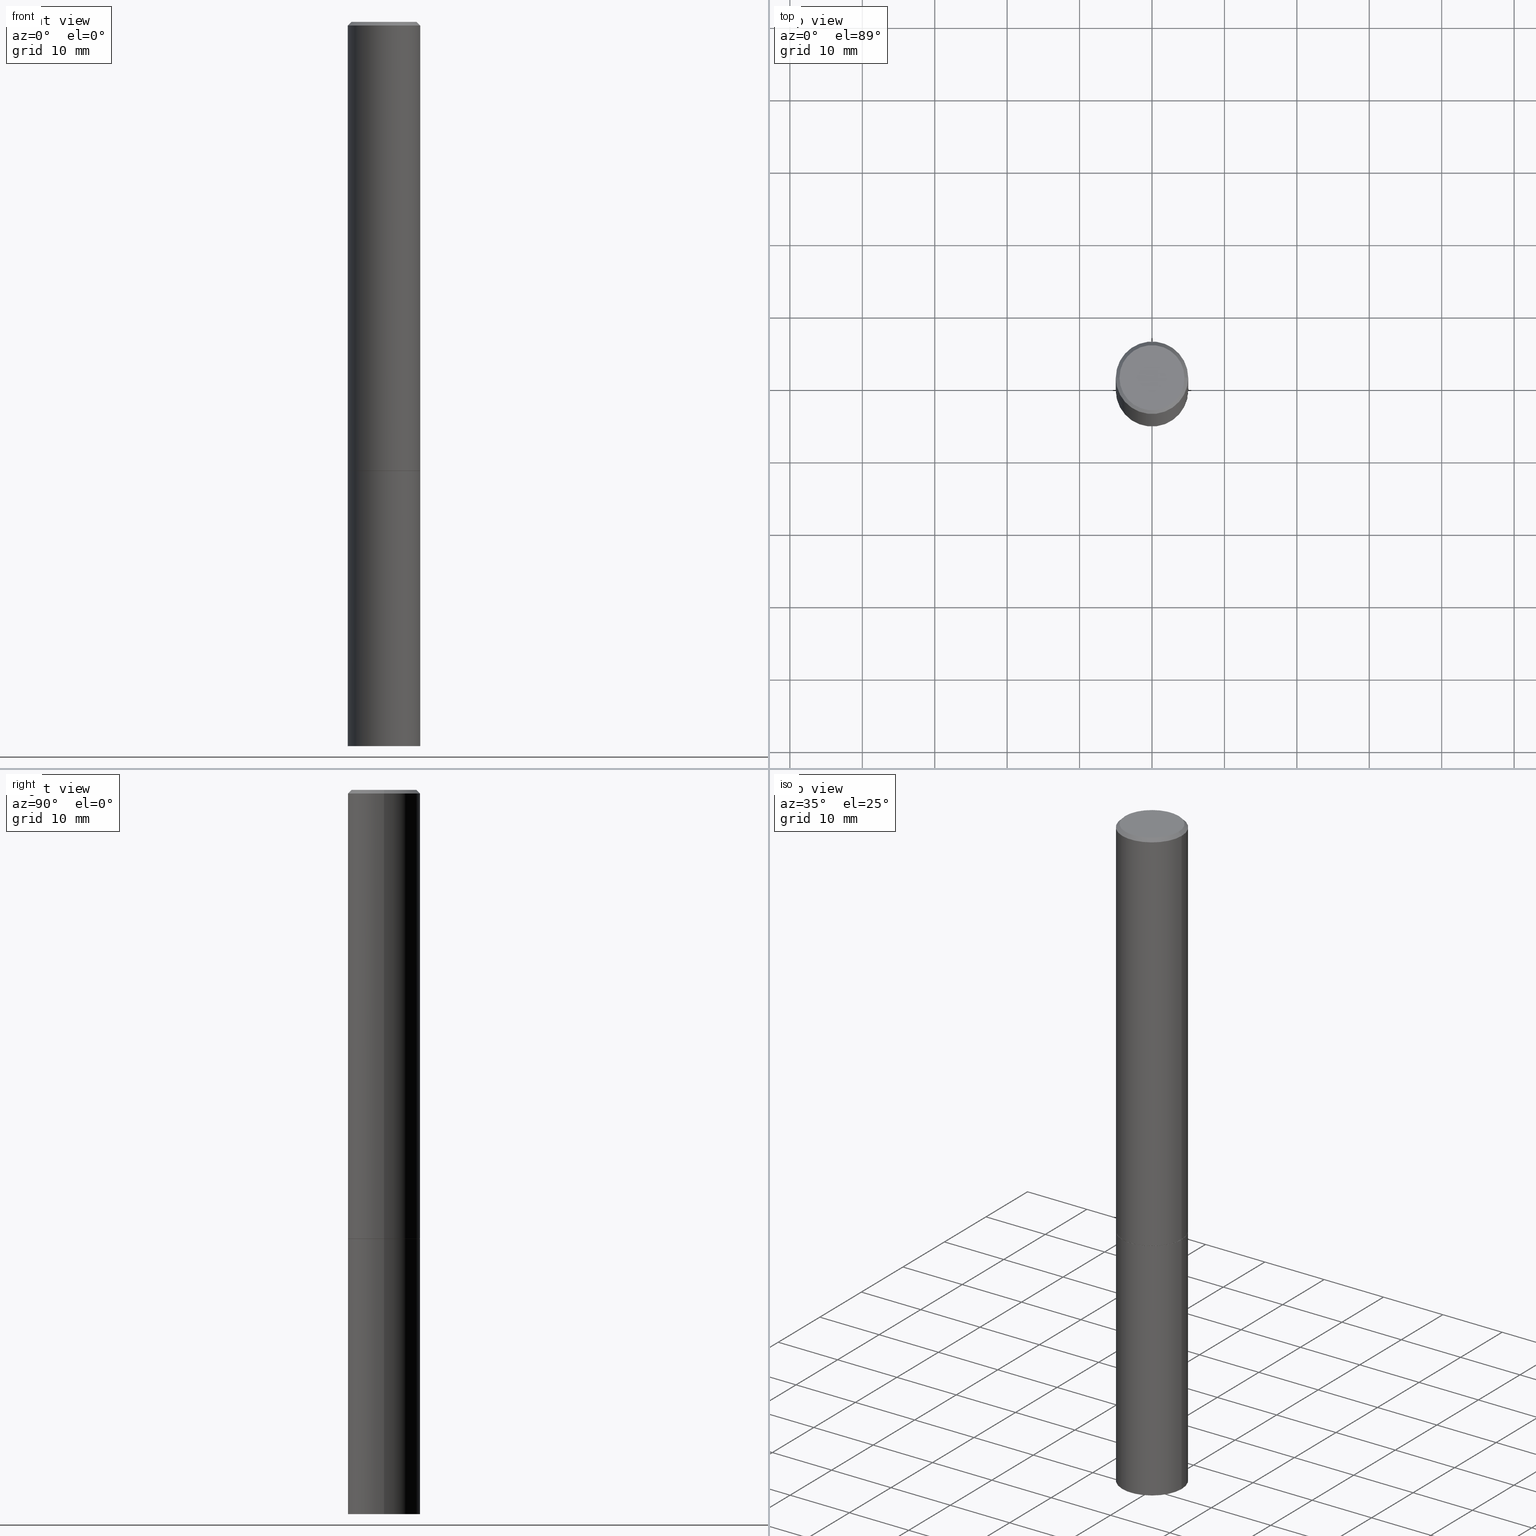
[diagram: canonical four-view strip — front | top / right | iso, engineering-drawing reading convention]
A machine part, canonical four-view strip (front | top / right | iso — engineering-drawing reading convention). The complete STEP part file that produces these views, byte-faithful:
ISO-10303-21;
HEADER;
FILE_DESCRIPTION (( 'STEP AP203' ),
    '1' );
FILE_NAME ('42614.STEP',
    '2024-02-28T03:22:31',
    ( '' ),
    ( '' ),
    'SwSTEP 2.0',
    'SolidWorks 2023',
    '' );
FILE_SCHEMA (( 'CONFIG_CONTROL_DESIGN' ));
ENDSEC;

DATA;
#1 = AXIS2_PLACEMENT_3D ( 'NONE', #303, #267, #355 ) ;
#2 = VERTEX_POINT ( 'NONE', #171 ) ;
#3 = ADVANCED_FACE ( 'NONE', ( #287 ), #257, .F. ) ;
#4 = CARTESIAN_POINT ( 'NONE',  ( 0.1968500000000000250, -9.893461521745931567E-15, -2.439900000000000180 ) ) ;
#5 = CARTESIAN_POINT ( 'NONE',  ( 1.234936949548815012E-15, 0.1768499999999998407, -6.153342185293596592E-16 ) ) ;
#6 = DIRECTION ( 'NONE',  ( -2.445468806185136597E-29, 3.491481338843145583E-15, 1.000000000000000000 ) ) ;
#7 = ORIENTED_EDGE ( 'NONE', *, *, #90, .F. ) ;
#8 = DATE_AND_TIME ( #206, #343 ) ;
#9 = ORIENTED_EDGE ( 'NONE', *, *, #210, .T. ) ;
#10 = AXIS2_PLACEMENT_3D ( 'NONE', #155, #51, #276 ) ;
#11 = CIRCLE ( 'NONE', #363, 0.1968500000000000250 ) ;
#12 = DIRECTION ( 'NONE',  ( -2.445468806185136597E-29, 3.491481338843145583E-15, 1.000000000000000000 ) ) ;
#13 = EDGE_CURVE ( 'NONE', #264, #89, #204, .T. ) ;
#14 = ORIENTED_EDGE ( 'NONE', *, *, #190, .T. ) ;
#15 = CARTESIAN_POINT ( 'NONE',  ( 0.1968500000000000250, -9.896953003084776152E-15, -2.440900000000000070 ) ) ;
#16 = DIRECTION ( 'NONE',  ( -2.445468806185136597E-29, 3.491481338843145583E-15, 1.000000000000000000 ) ) ;
#17 = PERSON_AND_ORGANIZATION ( #119, #73 ) ;
#18 = CARTESIAN_POINT ( 'NONE',  ( -0.1968499999999999139, 1.398703375343756604E-15, -9.682923725166778072E-30 ) ) ;
#19 = CARTESIAN_POINT ( 'NONE',  ( -0.1968499999999998307, 1.304766576325677324E-15, -0.02000000000000002123 ) ) ;
#20 = CC_DESIGN_PERSON_AND_ORGANIZATION_ASSIGNMENT ( #176, #99, ( #113 ) ) ;
#21 = DIRECTION ( 'NONE',  ( 1.000000000000000000, -6.982962677686266711E-15, 4.876176775795935793E-29 ) ) ;
#22 = ADVANCED_FACE ( 'NONE', ( #175 ), #153, .T. ) ;
#23 = EDGE_LOOP ( 'NONE', ( #316, #26 ) ) ;
#24 = MANIFOLD_SOLID_BREP ( 'Body-Move/Copy2[2]', #352 ) ;
#25 = CARTESIAN_POINT ( 'NONE',  ( 1.374596203102637849E-15, 0.1968499999999862582, -3.937000000000000721 ) ) ;
#26 = ORIENTED_EDGE ( 'NONE', *, *, #194, .T. ) ;
#27 = AXIS2_PLACEMENT_3D ( 'NONE', #290, #38, #237 ) ;
#28 = PRODUCT ( '42614', '42614', '', ( #345 ) ) ;
#29 = ORIENTED_EDGE ( 'NONE', *, *, #59, .T. ) ;
#30 = EDGE_CURVE ( 'NONE', #150, #192, #350, .T. ) ;
#31 = DIRECTION ( 'NONE',  ( -2.445468806185136597E-29, 3.491481338843145583E-15, 1.000000000000000000 ) ) ;
#32 = DIRECTION ( 'NONE',  ( 1.000000000000000000, 0.000000000000000000, 0.000000000000000000 ) ) ;
#33 = CIRCLE ( 'NONE', #1, 0.1968500000000000250 ) ;
#34 = ORIENTED_EDGE ( 'NONE', *, *, #342, .F. ) ;
#35 = DATE_AND_TIME ( #236, #226 ) ;
#36 = DIRECTION ( 'NONE',  ( 0.7071067811865469066, -7.319954787623254468E-15, -0.7071067811865481278 ) ) ;
#37 = DIRECTION ( 'NONE',  ( 1.000000000000000000, -6.982962677686267499E-15, 0.000000000000000000 ) ) ;
#38 = DIRECTION ( 'NONE',  ( -2.445468806185136597E-29, 3.491481338843145583E-15, 1.000000000000000000 ) ) ;
#39 = PERSON_AND_ORGANIZATION ( #119, #73 ) ;
#40 = ORIENTED_EDGE ( 'NONE', *, *, #342, .T. ) ;
#41 = LOCAL_TIME ( 22, 22, 31.00000000000000000, #91 ) ;
#42 = CIRCLE ( 'NONE', #138, 0.1968499999999998307 ) ;
#43 = DIRECTION ( 'NONE',  ( -2.445468806185136597E-29, 3.491481338843145583E-15, 1.000000000000000000 ) ) ;
#44 = LINE ( 'NONE', #182, #86 ) ;
#45 = CARTESIAN_POINT ( 'NONE',  ( 4.890937612370278413E-31, -6.982962677686297772E-17, -0.02000000000000002123 ) ) ;
#46 = CC_DESIGN_DATE_AND_TIME_ASSIGNMENT ( #85, #53, ( #50 ) ) ;
#47 = DIRECTION ( 'NONE',  ( 2.445468806185136597E-29, -3.491481338843145583E-15, -1.000000000000000000 ) ) ;
#48 = EDGE_CURVE ( 'NONE', #252, #2, #187, .T. ) ;
#49 = LINE ( 'NONE', #18, #243 ) ;
#50 = SECURITY_CLASSIFICATION ( '', '', #273 ) ;
#51 = DIRECTION ( 'NONE',  ( -2.438088387897960049E-29, 3.491481338843145188E-15, 1.000000000000000000 ) ) ;
#52 = ADVANCED_FACE ( 'NONE', ( #71 ), #286, .T. ) ;
#53 = DATE_TIME_ROLE ( 'classification_date' ) ;
#54 = CARTESIAN_POINT ( 'NONE',  ( -0.1968500000000000250, -2.895644097366366474E-15, -2.439900000000000180 ) ) ;
#55 = DIRECTION ( 'NONE',  ( -2.445468806185136877E-29, 3.491481338843145188E-15, 1.000000000000000000 ) ) ;
#56 = FACE_OUTER_BOUND ( 'NONE', #229, .T. ) ;
#57 = CIRCLE ( 'NONE', #281, 0.1958499999999999963 ) ;
#58 = AXIS2_PLACEMENT_3D ( 'NONE', #332, #220, #285 ) ;
#59 = EDGE_CURVE ( 'NONE', #344, #192, #11, .T. ) ;
#60 = DESIGN_CONTEXT ( 'detailed design', #191, 'design' ) ;
#61 = ORIENTED_EDGE ( 'NONE', *, *, #283, .F. ) ;
#62 = EDGE_CURVE ( 'NONE', #89, #254, #42, .T. ) ;
#63 = APPROVAL_STATUS ( 'not_yet_approved' ) ;
#64 = EDGE_LOOP ( 'NONE', ( #225, #260, #348, #354 ) ) ;
#65 = AXIS2_PLACEMENT_3D ( 'NONE', #256, #43, #148 ) ;
#66 =( LENGTH_UNIT ( ) NAMED_UNIT ( * ) SI_UNIT ( $, .METRE. ) );
#67 = EDGE_LOOP ( 'NONE', ( #258, #7, #140, #339 ) ) ;
#68 = APPROVAL_DATE_TIME ( #8, #139 ) ;
#69 = EDGE_LOOP ( 'NONE', ( #147, #114 ) ) ;
#70 = FACE_OUTER_BOUND ( 'NONE', #221, .T. ) ;
#71 = FACE_OUTER_BOUND ( 'NONE', #64, .T. ) ;
#72 = FACE_OUTER_BOUND ( 'NONE', #198, .T. ) ;
#73 = ORGANIZATION ( 'UNSPECIFIED', 'UNSPECIFIED', '' ) ;
#74 = CIRCLE ( 'NONE', #183, 0.1768499999999998407 ) ;
#75 = ADVANCED_FACE ( 'NONE', ( #76 ), #245, .T. ) ;
#76 = FACE_OUTER_BOUND ( 'NONE', #67, .T. ) ;
#77 = PERSON_AND_ORGANIZATION_ROLE ( 'design_supplier' ) ;
#78 = CARTESIAN_POINT ( 'NONE',  ( 4.890937612370278413E-31, -6.982962677686297772E-17, -0.02000000000000002123 ) ) ;
#79 = CARTESIAN_POINT ( 'NONE',  ( 5.969144809017301280E-29, -8.522356799982236121E-15, -2.440900000000000514 ) ) ;
#80 = AXIS2_PLACEMENT_3D ( 'NONE', #161, #326, #134 ) ;
#81 = LINE ( 'NONE', #189, #244 ) ;
#82 = APPROVAL_ROLE ( '' ) ;
#83 = DIRECTION ( 'NONE',  ( -1.000000000000000000, 6.982962677686265922E-15, -4.876176775795935793E-29 ) ) ;
#84 = EDGE_CURVE ( 'NONE', #344, #89, #249, .T. ) ;
#85 = DATE_AND_TIME ( #105, #109 ) ;
#86 = VECTOR ( 'NONE', #300, 39.37007874015748143 ) ;
#87 = CC_DESIGN_APPROVAL ( #103, ( #50 ) ) ;
#88 = AXIS2_PLACEMENT_3D ( 'NONE', #128, #16, #185 ) ;
#89 = VERTEX_POINT ( 'NONE', #157 ) ;
#90 = EDGE_CURVE ( 'NONE', #325, #264, #74, .T. ) ;
#91 = COORDINATED_UNIVERSAL_TIME_OFFSET ( 5, 0, .BEHIND. ) ;
#92 = ORIENTED_EDGE ( 'NONE', *, *, #13, .T. ) ;
#93 = DATE_AND_TIME ( #259, #41 ) ;
#94 = DIRECTION ( 'NONE',  ( -1.000000000000000000, 6.982962677686265922E-15, -4.876176775795935793E-29 ) ) ;
#95 = CC_DESIGN_APPROVAL ( #110, ( #364 ) ) ;
#96 = DATE_TIME_ROLE ( 'creation_date' ) ;
#97 = CARTESIAN_POINT ( 'NONE',  ( 0.000000000000000000, 0.000000000000000000, 0.000000000000000000 ) ) ;
#98 = ADVANCED_FACE ( 'NONE', ( #212 ), #302, .T. ) ;
#99 = PERSON_AND_ORGANIZATION_ROLE ( 'creator' ) ;
#100 = DIRECTION ( 'NONE',  ( 1.000000000000000000, -6.982962677686267499E-15, 0.000000000000000000 ) ) ;
#101 = DIRECTION ( 'NONE',  ( -2.445468806185136597E-29, 3.491481338843145583E-15, 1.000000000000000000 ) ) ;
#102 = CYLINDRICAL_SURFACE ( 'NONE', #251, 0.1968499999999999139 ) ;
#103 = APPROVAL ( #129, 'UNSPECIFIED' ) ;
#104 = DIRECTION ( 'NONE',  ( -2.445468806185136597E-29, 3.491481338843145583E-15, 1.000000000000000000 ) ) ;
#105 = CALENDAR_DATE ( 2024, 27, 2 ) ;
#106 = DIRECTION ( 'NONE',  ( -1.000000000000000000, 6.982962677686266711E-15, 0.000000000000000000 ) ) ;
#107 = CARTESIAN_POINT ( 'NONE',  ( 5.966699340211115678E-29, -8.518865318643391536E-15, -2.439900000000000180 ) ) ;
#108 = CARTESIAN_POINT ( 'NONE',  ( -1.043851414335219820E-46, 1.490343170380447200E-32, 4.268512490100411279E-18 ) ) ;
#109 = LOCAL_TIME ( 22, 22, 31.00000000000000000, #301 ) ;
#110 = APPROVAL ( #152, 'UNSPECIFIED' ) ;
#111 = DIRECTION ( 'NONE',  ( -1.000000000000000000, 6.982962677686265922E-15, -4.876176775795935793E-29 ) ) ;
#112 = VERTEX_POINT ( 'NONE', #219 ) ;
#113 = PRODUCT_DEFINITION_FORMATION_WITH_SPECIFIED_SOURCE ( 'ANY', '', #28, .NOT_KNOWN. ) ;
#114 = ORIENTED_EDGE ( 'NONE', *, *, #283, .T. ) ;
#115 = FACE_OUTER_BOUND ( 'NONE', #314, .T. ) ;
#116 = EDGE_CURVE ( 'NONE', #192, #344, #234, .T. ) ;
#117 = AXIS2_PLACEMENT_3D ( 'NONE', #97, #31, #21 ) ;
#118 = ORIENTED_EDGE ( 'NONE', *, *, #59, .F. ) ;
#119 = PERSON ( 'UNSPECIFIED', 'UNSPECIFIED', 'UNSPECIFIED', ('UNSPECIFIED'), ('UNSPECIFIED'), ('UNSPECIFIED') ) ;
#120 = ORIENTED_EDGE ( 'NONE', *, *, #224, .T. ) ;
#121 = APPROVAL_ROLE ( '' ) ;
#122 = DIRECTION ( 'NONE',  ( -2.445468806185136597E-29, 3.491481338843145583E-15, 1.000000000000000000 ) ) ;
#123 = AXIS2_PLACEMENT_3D ( 'NONE', #25, #309, #111 ) ;
#124 = ORIENTED_EDGE ( 'NONE', *, *, #262, .F. ) ;
#125 = ADVANCED_FACE ( 'NONE', ( #216 ), #160, .T. ) ;
#126 = EDGE_LOOP ( 'NONE', ( #61, #92, #165, #280 ) ) ;
#127 = DATE_AND_TIME ( #156, #282 ) ;
#128 = CARTESIAN_POINT ( 'NONE',  ( 4.890937612370278413E-31, -6.982962677686297772E-17, -0.02000000000000002123 ) ) ;
#129 = APPROVAL_STATUS ( 'not_yet_approved' ) ;
#130 = AXIS2_PLACEMENT_3D ( 'NONE', #299, #6, #37 ) ;
#131 = DIRECTION ( 'NONE',  ( 2.438088387897960049E-29, -3.491481338843145188E-15, -1.000000000000000000 ) ) ;
#132 = DIRECTION ( 'NONE',  ( 1.000000000000000000, -6.982962677686266711E-15, 0.000000000000000000 ) ) ;
#133 = EDGE_CURVE ( 'NONE', #254, #89, #213, .T. ) ;
#134 = DIRECTION ( 'NONE',  ( 1.000000000000000000, -6.982962677686265922E-15, 4.876176775795935793E-29 ) ) ;
#135 = DIRECTION ( 'NONE',  ( -2.445468806185136597E-29, 3.491481338843145583E-15, 1.000000000000000000 ) ) ;
#136 =( GEOMETRIC_REPRESENTATION_CONTEXT ( 3 ) GLOBAL_UNCERTAINTY_ASSIGNED_CONTEXT ( ( #255 ) ) GLOBAL_UNIT_ASSIGNED_CONTEXT ( ( #294, #240, #180 ) ) REPRESENTATION_CONTEXT ( 'NONE', 'WORKASPACE' ) );
#137 = CC_DESIGN_SECURITY_CLASSIFICATION ( #50, ( #113 ) ) ;
#138 = AXIS2_PLACEMENT_3D ( 'NONE', #188, #135, #132 ) ;
#139 = APPROVAL ( #63, 'UNSPECIFIED' ) ;
#140 = ORIENTED_EDGE ( 'NONE', *, *, #328, .T. ) ;
#141 = ORIENTED_EDGE ( 'NONE', *, *, #62, .F. ) ;
#142 = MANIFOLD_SOLID_BREP ( 'Body-Move/Copy2[1]', #274 ) ;
#143 = DIRECTION ( 'NONE',  ( -0.7071067811865469066, 2.468850131082250355E-15, -0.7071067811865481278 ) ) ;
#144 = ORIENTED_EDGE ( 'NONE', *, *, #30, .T. ) ;
#145 = VECTOR ( 'NONE', #200, 39.37007874015748143 ) ;
#146 = CARTESIAN_POINT ( 'NONE',  ( 0.1968500000000000250, -1.374596203102541608E-15, 9.598753983154300858E-30 ) ) ;
#147 = ORIENTED_EDGE ( 'NONE', *, *, #90, .T. ) ;
#148 = DIRECTION ( 'NONE',  ( 1.000000000000000000, -6.982962677686268288E-15, 0.000000000000000000 ) ) ;
#149 = ORIENTED_EDGE ( 'NONE', *, *, #190, .F. ) ;
#150 = VERTEX_POINT ( 'NONE', #329 ) ;
#151 = AXIS2_PLACEMENT_3D ( 'NONE', #356, #184, #275 ) ;
#152 = APPROVAL_STATUS ( 'not_yet_approved' ) ;
#153 = CONICAL_SURFACE ( 'NONE', #27, 0.1958499999999999963, 0.7853981633972775267 ) ;
#154 = ORIENTED_EDGE ( 'NONE', *, *, #311, .T. ) ;
#155 = CARTESIAN_POINT ( 'NONE',  ( 5.969144809017300159E-29, -8.522356799982234543E-15, -2.440900000000000070 ) ) ;
#156 = CALENDAR_DATE ( 2024, 27, 2 ) ;
#157 = CARTESIAN_POINT ( 'NONE',  ( 0.1968499999999998307, -1.420318657638187938E-15, -0.02000000000000002123 ) ) ;
#158 = APPROVAL_DATE_TIME ( #127, #103 ) ;
#159 = DIRECTION ( 'NONE',  ( 1.000000000000000000, -6.982962677686266711E-15, 4.875932113059882493E-29 ) ) ;
#160 = CYLINDRICAL_SURFACE ( 'NONE', #80, 0.1968500000000000250 ) ;
#161 = CARTESIAN_POINT ( 'NONE',  ( 0.000000000000000000, 0.000000000000000000, 0.000000000000000000 ) ) ;
#162 = CC_DESIGN_DATE_AND_TIME_ASSIGNMENT ( #35, #96, ( #364 ) ) ;
#163 = CIRCLE ( 'NONE', #351, 0.1958499999999999963 ) ;
#164 = ORIENTED_EDGE ( 'NONE', *, *, #311, .F. ) ;
#165 = ORIENTED_EDGE ( 'NONE', *, *, #62, .T. ) ;
#166 = CONICAL_SURFACE ( 'NONE', #218, 0.1968499999999998307, 0.7853981633974473908 ) ;
#167 = ORIENTED_EDGE ( 'NONE', *, *, #366, .F. ) ;
#168 = APPLICATION_CONTEXT ( 'configuration controlled 3d designs of mechanical parts and assemblies' ) ;
#169 = EDGE_LOOP ( 'NONE', ( #292, #323, #202, #34 ) ) ;
#170 = CC_DESIGN_PERSON_AND_ORGANIZATION_ASSIGNMENT ( #304, #360, ( #50 ) ) ;
#171 = CARTESIAN_POINT ( 'NONE',  ( -0.1968500000000000250, -9.735456040160091980E-15, -2.440900000000000070 ) ) ;
#172 = AXIS2_PLACEMENT_3D ( 'NONE', #178, #291, #32 ) ;
#173 = APPLICATION_PROTOCOL_DEFINITION ( 'international standard', 'config_control_design', 1994, #168 ) ;
#174 = ADVANCED_FACE ( 'NONE', ( #334 ), #271, .F. ) ;
#175 = FACE_OUTER_BOUND ( 'NONE', #295, .T. ) ;
#176 = PERSON_AND_ORGANIZATION ( #119, #73 ) ;
#177 = ORIENTED_EDGE ( 'NONE', *, *, #224, .F. ) ;
#178 = CARTESIAN_POINT ( 'NONE',  ( 0.000000000000000000, 0.000000000000000000, 0.000000000000000000 ) ) ;
#179 = ORIENTED_EDGE ( 'NONE', *, *, #116, .F. ) ;
#180 =( NAMED_UNIT ( * ) SI_UNIT ( $, .STERADIAN. ) SOLID_ANGLE_UNIT ( ) );
#181 = VECTOR ( 'NONE', #242, 39.37007874015748143 ) ;
#182 = CARTESIAN_POINT ( 'NONE',  ( 0.1958499999999999963, -9.889970040407091715E-15, -2.440900000000000514 ) ) ;
#183 = AXIS2_PLACEMENT_3D ( 'NONE', #108, #104, #159 ) ;
#184 = DIRECTION ( 'NONE',  ( -2.445468806185136597E-29, 3.491481338843145583E-15, 1.000000000000000000 ) ) ;
#185 = DIRECTION ( 'NONE',  ( 1.000000000000000000, -6.982962677686266711E-15, 0.000000000000000000 ) ) ;
#186 = DIRECTION ( 'NONE',  ( 1.000000000000000000, -6.982962677686268288E-15, 0.000000000000000000 ) ) ;
#187 = CIRCLE ( 'NONE', #235, 0.1968500000000000250 ) ;
#188 = CARTESIAN_POINT ( 'NONE',  ( 4.890937612370278413E-31, -6.982962677686297772E-17, -0.02000000000000002123 ) ) ;
#189 = CARTESIAN_POINT ( 'NONE',  ( -0.1968500000000000250, 1.398703375343757393E-15, -9.682923725166783677E-30 ) ) ;
#190 = EDGE_CURVE ( 'NONE', #313, #150, #163, .T. ) ;
#191 = APPLICATION_CONTEXT ( 'configuration controlled 3d designs of mechanical parts and assemblies' ) ;
#192 = VERTEX_POINT ( 'NONE', #54 ) ;
#193 = CARTESIAN_POINT ( 'NONE',  ( -0.1968500000000000250, -9.735456040160091980E-15, -3.937000000000000277 ) ) ;
#194 = EDGE_CURVE ( 'NONE', #2, #252, #33, .T. ) ;
#195 = PLANE ( 'NONE',  #123 ) ;
#196 = VECTOR ( 'NONE', #143, 39.37007874015748143 ) ;
#197 = CARTESIAN_POINT ( 'NONE',  ( -1.043851414335219820E-46, 1.490343170380447200E-32, 4.268512490100411279E-18 ) ) ;
#198 = EDGE_LOOP ( 'NONE', ( #149, #177 ) ) ;
#199 = DIRECTION ( 'NONE',  ( 1.000000000000000000, -6.982962677686266711E-15, 4.876176775795935793E-29 ) ) ;
#200 = DIRECTION ( 'NONE',  ( -0.7071067811864267805, 7.493145998869918709E-15, 0.7071067811866682540 ) ) ;
#201 = APPROVAL_DATE_TIME ( #93, #110 ) ;
#202 = ORIENTED_EDGE ( 'NONE', *, *, #48, .F. ) ;
#203 = PERSON_AND_ORGANIZATION ( #119, #73 ) ;
#204 = LINE ( 'NONE', #233, #333 ) ;
#205 = CC_DESIGN_APPROVAL ( #139, ( #113 ) ) ;
#206 = CALENDAR_DATE ( 2024, 27, 2 ) ;
#207 = ORIENTED_EDGE ( 'NONE', *, *, #84, .F. ) ;
#208 = PERSON_AND_ORGANIZATION ( #119, #73 ) ;
#209 = CARTESIAN_POINT ( 'NONE',  ( 5.969144809017300159E-29, -8.522356799982234543E-15, -2.440900000000000070 ) ) ;
#210 = EDGE_CURVE ( 'NONE', #192, #254, #49, .T. ) ;
#211 = DIRECTION ( 'NONE',  ( -2.445468806185136877E-29, 3.491481338843145188E-15, 1.000000000000000000 ) ) ;
#212 = FACE_OUTER_BOUND ( 'NONE', #318, .T. ) ;
#213 = CIRCLE ( 'NONE', #88, 0.1968499999999998307 ) ;
#214 = CARTESIAN_POINT ( 'NONE',  ( 5.966699340211115678E-29, -8.518865318643391536E-15, -2.439900000000000180 ) ) ;
#215 = CC_DESIGN_PERSON_AND_ORGANIZATION_ASSIGNMENT ( #203, #289, ( #364 ) ) ;
#216 = FACE_OUTER_BOUND ( 'NONE', #169, .T. ) ;
#217 = DIRECTION ( 'NONE',  ( 1.000000000000000000, -6.982962677686262766E-15, 0.000000000000000000 ) ) ;
#218 = AXIS2_PLACEMENT_3D ( 'NONE', #45, #230, #253 ) ;
#219 = CARTESIAN_POINT ( 'NONE',  ( 0.1968500000000000250, -1.512055823412800660E-14, -3.937000000000000277 ) ) ;
#220 = DIRECTION ( 'NONE',  ( -2.445468806185136597E-29, 3.491481338843145583E-15, 1.000000000000000000 ) ) ;
#221 = EDGE_LOOP ( 'NONE', ( #14, #144, #118, #124 ) ) ;
#222 = APPROVAL_PERSON_ORGANIZATION ( #266, #110, #322 ) ;
#223 = DIRECTION ( 'NONE',  ( -2.445468806185136597E-29, 3.491481338843145583E-15, 1.000000000000000000 ) ) ;
#224 = EDGE_CURVE ( 'NONE', #150, #313, #57, .T. ) ;
#225 = ORIENTED_EDGE ( 'NONE', *, *, #210, .F. ) ;
#226 = LOCAL_TIME ( 22, 22, 31.00000000000000000, #263 ) ;
#227 = APPROVAL_PERSON_ORGANIZATION ( #17, #103, #82 ) ;
#228 = AXIS2_PLACEMENT_3D ( 'NONE', #78, #47, #106 ) ;
#229 = EDGE_LOOP ( 'NONE', ( #167, #164 ) ) ;
#230 = DIRECTION ( 'NONE',  ( 2.445468806185136597E-29, -3.491481338843145583E-15, -1.000000000000000000 ) ) ;
#231 = DIRECTION ( 'NONE',  ( 2.438088387897960049E-29, -3.491481338843145188E-15, -1.000000000000000000 ) ) ;
#232 = COORDINATED_UNIVERSAL_TIME_OFFSET ( 5, 0, .BEHIND. ) ;
#233 = CARTESIAN_POINT ( 'NONE',  ( 0.1968499999999998307, -1.420318657638187938E-15, -0.02000000000000002123 ) ) ;
#234 = CIRCLE ( 'NONE', #308, 0.1968500000000000250 ) ;
#235 = AXIS2_PLACEMENT_3D ( 'NONE', #209, #122, #100 ) ;
#236 = CALENDAR_DATE ( 2024, 27, 2 ) ;
#237 = DIRECTION ( 'NONE',  ( 1.000000000000000000, -6.982962677686268288E-15, 0.000000000000000000 ) ) ;
#238 = FACE_OUTER_BOUND ( 'NONE', #126, .T. ) ;
#239 = DIMENSIONAL_EXPONENTS ( 1.000000000000000000, 0.000000000000000000, 0.000000000000000000, 0.000000000000000000, 0.000000000000000000, 0.000000000000000000, 0.000000000000000000 ) ;
#240 =( NAMED_UNIT ( * ) PLANE_ANGLE_UNIT ( ) SI_UNIT ( $, .RADIAN. ) );
#241 = CARTESIAN_POINT ( 'NONE',  ( -0.1958499999999999963, -7.130758851996079342E-15, -2.440900000000000514 ) ) ;
#242 = DIRECTION ( 'NONE',  ( -2.445468806185136877E-29, 3.491481338843145188E-15, 1.000000000000000000 ) ) ;
#243 = VECTOR ( 'NONE', #359, 39.37007874015748143 ) ;
#244 = VECTOR ( 'NONE', #55, 39.37007874015748143 ) ;
#245 = CONICAL_SURFACE ( 'NONE', #228, 0.1968499999999998307, 0.7853981633974473908 ) ;
#246 = DIRECTION ( 'NONE',  ( -2.445468806185136597E-29, 3.491481338843145583E-15, 1.000000000000000000 ) ) ;
#247 = ADVANCED_FACE ( 'NONE', ( #72 ), #305, .F. ) ;
#248 = CARTESIAN_POINT ( 'NONE',  ( 1.374596203102601167E-15, 0.1968499999999914762, -2.440900000000000958 ) ) ;
#249 = LINE ( 'NONE', #361, #181 ) ;
#250 = COORDINATED_UNIVERSAL_TIME_OFFSET ( 5, 0, .BEHIND. ) ;
#251 = AXIS2_PLACEMENT_3D ( 'NONE', #272, #12, #199 ) ;
#252 = VERTEX_POINT ( 'NONE', #15 ) ;
#253 = DIRECTION ( 'NONE',  ( -1.000000000000000000, 6.982962677686266711E-15, 0.000000000000000000 ) ) ;
#254 = VERTEX_POINT ( 'NONE', #19 ) ;
#255 = UNCERTAINTY_MEASURE_WITH_UNIT (LENGTH_MEASURE( 1.000000000000000082E-05 ), #294, 'distance_accuracy_value', 'NONE');
#256 = CARTESIAN_POINT ( 'NONE',  ( 5.969144809017301280E-29, -8.522356799982236121E-15, -2.440900000000000514 ) ) ;
#257 = PLANE ( 'NONE',  #310 ) ;
#258 = ORIENTED_EDGE ( 'NONE', *, *, #13, .F. ) ;
#259 = CALENDAR_DATE ( 2024, 27, 2 ) ;
#260 = ORIENTED_EDGE ( 'NONE', *, *, #116, .T. ) ;
#261 = VECTOR ( 'NONE', #211, 39.37007874015748143 ) ;
#262 = EDGE_CURVE ( 'NONE', #313, #344, #44, .T. ) ;
#263 = COORDINATED_UNIVERSAL_TIME_OFFSET ( 5, 0, .BEHIND. ) ;
#264 = VERTEX_POINT ( 'NONE', #338 ) ;
#265 = PRODUCT_RELATED_PRODUCT_CATEGORY ( 'detail', '', ( #28 ) ) ;
#266 = PERSON_AND_ORGANIZATION ( #119, #73 ) ;
#267 = DIRECTION ( 'NONE',  ( -2.445468806185136597E-29, 3.491481338843145583E-15, 1.000000000000000000 ) ) ;
#268 = CC_DESIGN_PERSON_AND_ORGANIZATION_ASSIGNMENT ( #208, #77, ( #113 ) ) ;
#269 = ADVANCED_FACE ( 'NONE', ( #56 ), #195, .T. ) ;
#270 = SHAPE_DEFINITION_REPRESENTATION ( #284, #293 ) ;
#271 = PLANE ( 'NONE',  #327 ) ;
#272 = CARTESIAN_POINT ( 'NONE',  ( 0.000000000000000000, 0.000000000000000000, 0.000000000000000000 ) ) ;
#273 = SECURITY_CLASSIFICATION_LEVEL ( 'unclassified' ) ;
#274 = CLOSED_SHELL ( 'NONE', ( #125, #269, #174, #98 ) ) ;
#275 = DIRECTION ( 'NONE',  ( 1.000000000000000000, -6.982962677686265922E-15, 4.876176775795935793E-29 ) ) ;
#276 = DIRECTION ( 'NONE',  ( 1.000000000000000000, -6.982962677686265922E-15, 4.876176775795935793E-29 ) ) ;
#277 = DIRECTION ( 'NONE',  ( -2.445468806185136597E-29, 3.491481338843145583E-15, 1.000000000000000000 ) ) ;
#278 = CARTESIAN_POINT ( 'NONE',  ( -0.1768499999999998407, 1.269851762937246464E-15, 4.268512490091652920E-18 ) ) ;
#279 = ORIENTED_EDGE ( 'NONE', *, *, #194, .F. ) ;
#280 = ORIENTED_EDGE ( 'NONE', *, *, #328, .F. ) ;
#281 = AXIS2_PLACEMENT_3D ( 'NONE', #79, #101, #186 ) ;
#282 = LOCAL_TIME ( 22, 22, 31.00000000000000000, #250 ) ;
#283 = EDGE_CURVE ( 'NONE', #264, #325, #362, .T. ) ;
#284 = PRODUCT_DEFINITION_SHAPE ( 'NONE', 'NONE',  #364 ) ;
#285 = DIRECTION ( 'NONE',  ( 1.000000000000000000, -6.982962677686267499E-15, 0.000000000000000000 ) ) ;
#286 = CYLINDRICAL_SURFACE ( 'NONE', #117, 0.1968499999999999139 ) ;
#287 = FACE_OUTER_BOUND ( 'NONE', #69, .T. ) ;
#288 = CONICAL_SURFACE ( 'NONE', #65, 0.1958499999999999963, 0.7853981633972775267 ) ;
#289 = PERSON_AND_ORGANIZATION_ROLE ( 'creator' ) ;
#290 = CARTESIAN_POINT ( 'NONE',  ( 5.969144809017301280E-29, -8.522356799982236121E-15, -2.440900000000000514 ) ) ;
#291 = DIRECTION ( 'NONE',  ( 0.000000000000000000, 0.000000000000000000, 1.000000000000000000 ) ) ;
#292 = ORIENTED_EDGE ( 'NONE', *, *, #366, .T. ) ;
#293 = ADVANCED_BREP_SHAPE_REPRESENTATION ( '42614', ( #142, #24, #172 ), #136 ) ;
#294 =( CONVERSION_BASED_UNIT ( 'INCH', #319 ) LENGTH_UNIT ( ) NAMED_UNIT ( #239 ) );
#295 = EDGE_LOOP ( 'NONE', ( #346, #120, #341, #179 ) ) ;
#296 = CIRCLE ( 'NONE', #130, 0.1968500000000000250 ) ;
#297 = ADVANCED_FACE ( 'NONE', ( #238 ), #166, .T. ) ;
#298 = ADVANCED_FACE ( 'NONE', ( #115 ), #102, .T. ) ;
#299 = CARTESIAN_POINT ( 'NONE',  ( 9.627810689950883669E-29, -1.374596203102546341E-14, -3.937000000000000277 ) ) ;
#300 = DIRECTION ( 'NONE',  ( 0.7071067811864267805, -2.468850131080992517E-15, 0.7071067811866682540 ) ) ;
#301 = COORDINATED_UNIVERSAL_TIME_OFFSET ( 5, 0, .BEHIND. ) ;
#302 = CYLINDRICAL_SURFACE ( 'NONE', #151, 0.1968500000000000250 ) ;
#303 = CARTESIAN_POINT ( 'NONE',  ( 5.969144809017300159E-29, -8.522356799982234543E-15, -2.440900000000000070 ) ) ;
#304 = PERSON_AND_ORGANIZATION ( #119, #73 ) ;
#305 = PLANE ( 'NONE',  #10 ) ;
#306 = DIRECTION ( 'NONE',  ( 1.000000000000000000, -6.982962677686268288E-15, 0.000000000000000000 ) ) ;
#307 = VERTEX_POINT ( 'NONE', #193 ) ;
#308 = AXIS2_PLACEMENT_3D ( 'NONE', #214, #358, #331 ) ;
#309 = DIRECTION ( 'NONE',  ( 2.438088387897960049E-29, -3.491481338843145188E-15, -1.000000000000000000 ) ) ;
#310 = AXIS2_PLACEMENT_3D ( 'NONE', #5, #231, #94 ) ;
#311 = EDGE_CURVE ( 'NONE', #307, #112, #357, .T. ) ;
#312 = DIRECTION ( 'NONE',  ( 1.000000000000000000, -6.982962677686266711E-15, 4.875932113059882493E-29 ) ) ;
#313 = VERTEX_POINT ( 'NONE', #335 ) ;
#314 = EDGE_LOOP ( 'NONE', ( #29, #9, #141, #207 ) ) ;
#315 = LINE ( 'NONE', #340, #196 ) ;
#316 = ORIENTED_EDGE ( 'NONE', *, *, #48, .T. ) ;
#317 = PERSON_AND_ORGANIZATION ( #119, #73 ) ;
#318 = EDGE_LOOP ( 'NONE', ( #320, #154, #40, #279 ) ) ;
#319 = LENGTH_MEASURE_WITH_UNIT ( LENGTH_MEASURE( 0.02539999999999999897 ), #66 );
#320 = ORIENTED_EDGE ( 'NONE', *, *, #337, .F. ) ;
#321 = AXIS2_PLACEMENT_3D ( 'NONE', #197, #223, #312 ) ;
#322 = APPROVAL_ROLE ( '' ) ;
#323 = ORIENTED_EDGE ( 'NONE', *, *, #337, .T. ) ;
#324 = LINE ( 'NONE', #146, #261 ) ;
#325 = VERTEX_POINT ( 'NONE', #278 ) ;
#326 = DIRECTION ( 'NONE',  ( -2.445468806185136597E-29, 3.491481338843145583E-15, 1.000000000000000000 ) ) ;
#327 = AXIS2_PLACEMENT_3D ( 'NONE', #248, #131, #83 ) ;
#328 = EDGE_CURVE ( 'NONE', #325, #254, #315, .T. ) ;
#329 = CARTESIAN_POINT ( 'NONE',  ( -0.1958499999999999963, -7.125460397647855362E-15, -2.440900000000000514 ) ) ;
#330 = CARTESIAN_POINT ( 'NONE',  ( 5.969144809017301280E-29, -8.522356799982236121E-15, -2.440900000000000514 ) ) ;
#331 = DIRECTION ( 'NONE',  ( 1.000000000000000000, -6.982962677686262766E-15, 0.000000000000000000 ) ) ;
#332 = CARTESIAN_POINT ( 'NONE',  ( 9.627810689950883669E-29, -1.374596203102546341E-14, -3.937000000000000277 ) ) ;
#333 = VECTOR ( 'NONE', #36, 39.37007874015748143 ) ;
#334 = FACE_OUTER_BOUND ( 'NONE', #23, .T. ) ;
#335 = CARTESIAN_POINT ( 'NONE',  ( 0.1958499999999999963, -9.889970040407091715E-15, -2.440900000000000514 ) ) ;
#336 = CC_DESIGN_PERSON_AND_ORGANIZATION_ASSIGNMENT ( #39, #349, ( #28 ) ) ;
#337 = EDGE_CURVE ( 'NONE', #307, #2, #81, .T. ) ;
#338 = CARTESIAN_POINT ( 'NONE',  ( 0.1768499999999998407, -1.316798864272041155E-15, 4.268512490109333727E-18 ) ) ;
#339 = ORIENTED_EDGE ( 'NONE', *, *, #133, .T. ) ;
#340 = CARTESIAN_POINT ( 'NONE',  ( -0.1968499999999998307, 1.304766576325677324E-15, -0.02000000000000002123 ) ) ;
#341 = ORIENTED_EDGE ( 'NONE', *, *, #262, .T. ) ;
#342 = EDGE_CURVE ( 'NONE', #112, #252, #324, .T. ) ;
#343 = LOCAL_TIME ( 22, 22, 31.00000000000000000, #232 ) ;
#344 = VERTEX_POINT ( 'NONE', #4 ) ;
#345 = MECHANICAL_CONTEXT ( 'NONE', #168, 'mechanical' ) ;
#346 = ORIENTED_EDGE ( 'NONE', *, *, #30, .F. ) ;
#347 = APPLICATION_PROTOCOL_DEFINITION ( 'international standard', 'config_control_design', 1994, #191 ) ;
#348 = ORIENTED_EDGE ( 'NONE', *, *, #84, .T. ) ;
#349 = PERSON_AND_ORGANIZATION_ROLE ( 'design_owner' ) ;
#350 = LINE ( 'NONE', #241, #145 ) ;
#351 = AXIS2_PLACEMENT_3D ( 'NONE', #330, #277, #306 ) ;
#352 = CLOSED_SHELL ( 'NONE', ( #353, #298, #297, #75, #52, #22, #247, #3 ) ) ;
#353 = ADVANCED_FACE ( 'NONE', ( #70 ), #288, .T. ) ;
#354 = ORIENTED_EDGE ( 'NONE', *, *, #133, .F. ) ;
#355 = DIRECTION ( 'NONE',  ( 1.000000000000000000, -6.982962677686267499E-15, 0.000000000000000000 ) ) ;
#356 = CARTESIAN_POINT ( 'NONE',  ( 0.000000000000000000, 0.000000000000000000, 0.000000000000000000 ) ) ;
#357 = CIRCLE ( 'NONE', #58, 0.1968500000000000250 ) ;
#358 = DIRECTION ( 'NONE',  ( -2.445468806185136597E-29, 3.491481338843145583E-15, 1.000000000000000000 ) ) ;
#359 = DIRECTION ( 'NONE',  ( -2.445468806185136877E-29, 3.491481338843145188E-15, 1.000000000000000000 ) ) ;
#360 = PERSON_AND_ORGANIZATION_ROLE ( 'classification_officer' ) ;
#361 = CARTESIAN_POINT ( 'NONE',  ( 0.1968499999999999139, -1.374596203102541017E-15, 9.598753983154295253E-30 ) ) ;
#362 = CIRCLE ( 'NONE', #321, 0.1768499999999998407 ) ;
#363 = AXIS2_PLACEMENT_3D ( 'NONE', #107, #246, #217 ) ;
#364 = PRODUCT_DEFINITION ( 'UNKNOWN', '', #113, #60 ) ;
#365 = APPROVAL_PERSON_ORGANIZATION ( #317, #139, #121 ) ;
#366 = EDGE_CURVE ( 'NONE', #112, #307, #296, .T. ) ;
ENDSEC;
END-ISO-10303-21;
